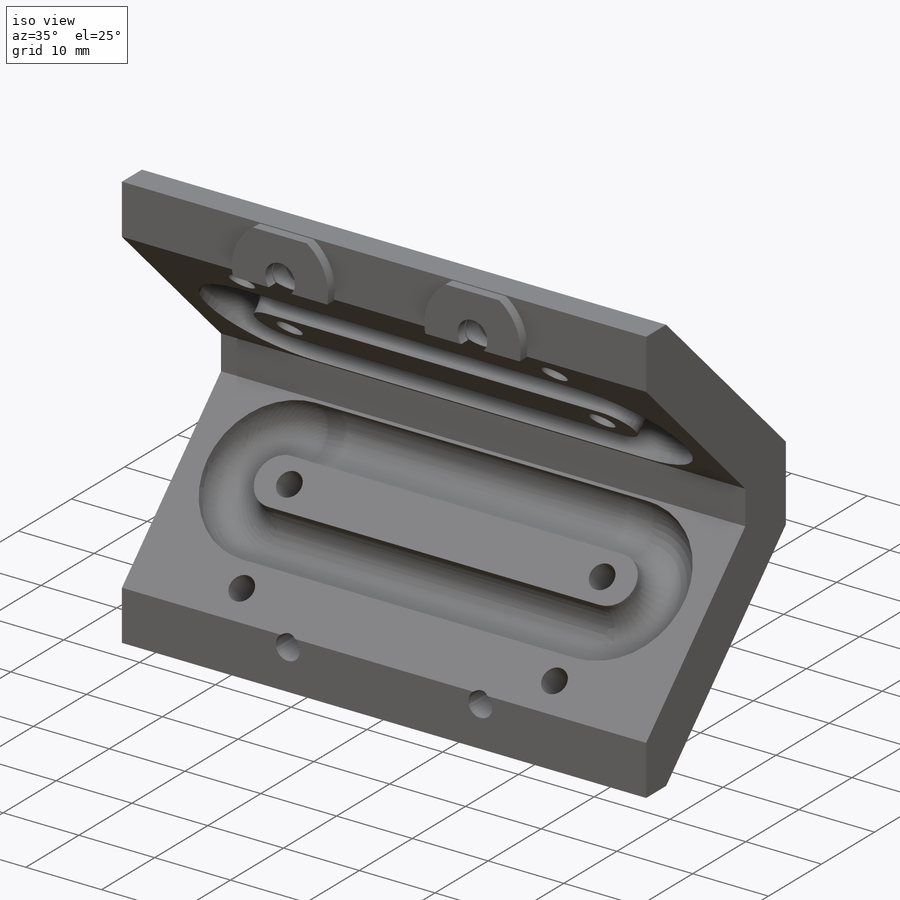
[diagram: iso view]
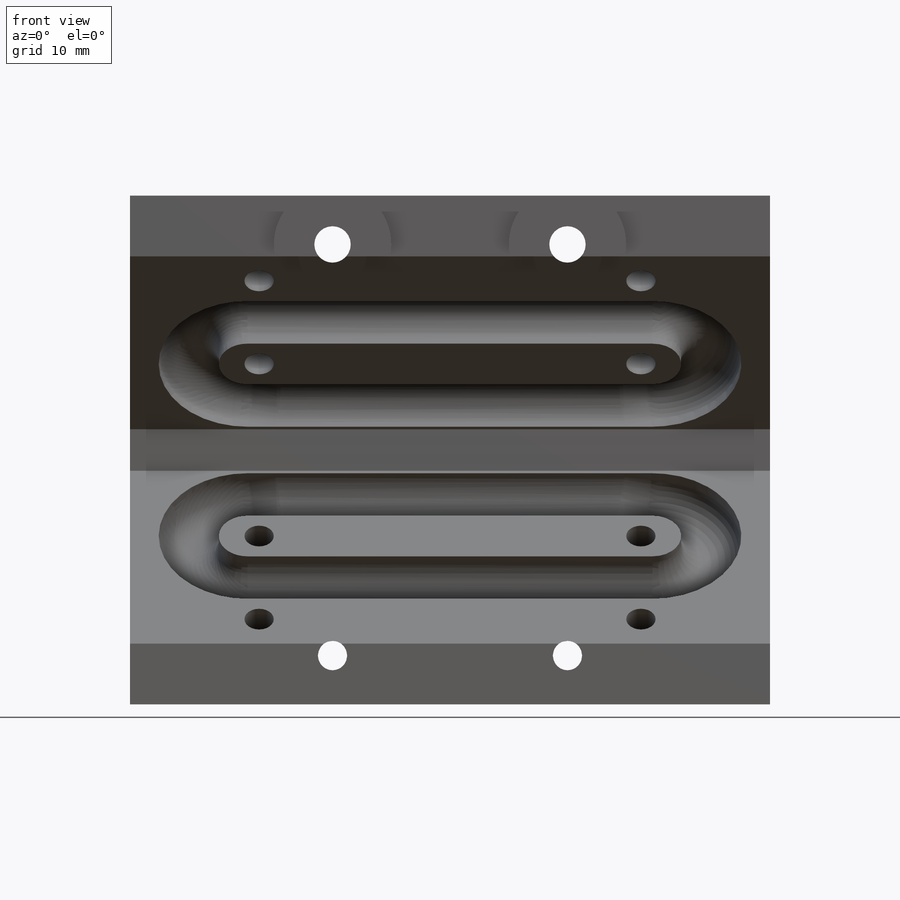
[diagram: front view]
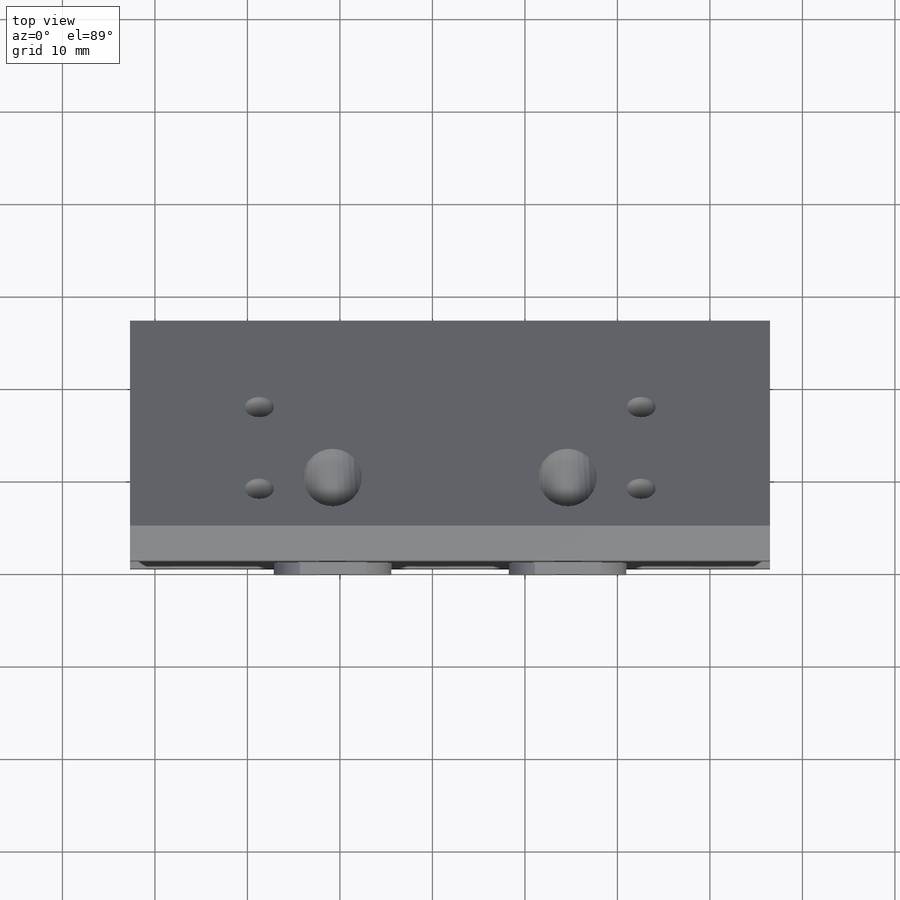
[diagram: top view]
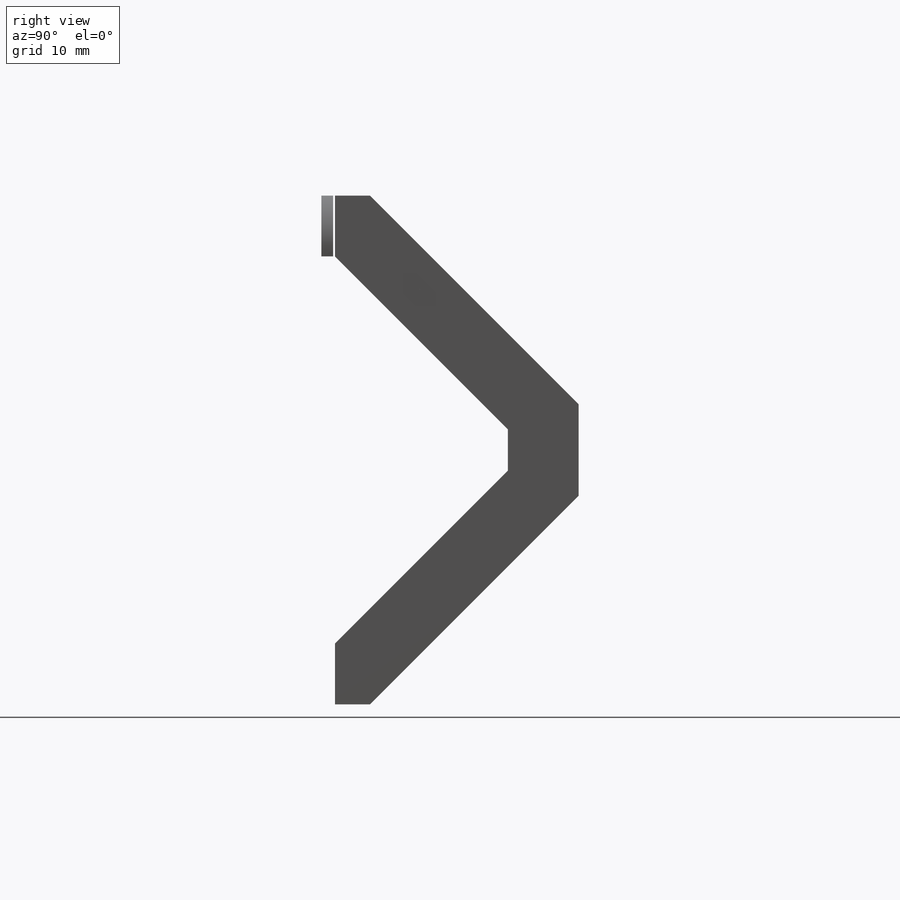
[diagram: right view]
SOLIDWORKS PART (.sldprt)
format: sldprt  version: not decoded by parser v0  size: 710,144 bytes
history: native  units: mm
features: sketch x9, cut_extrude x4, chamfer x3, plane x2, extrude x2, material x1, sweep x1, boolean_combine x1, fillet x1, mirror x1, move_body x1 (+11 scaffold rows collapsed)
feature tree (37):
  scaffold x11  (default folders/planes/origin — collapsed)
  material  "Material <not specified>"
  sketch  "Sketch1"  dims[c1.D1=0.762mm c1.D2=38.1mm c1.D3=~15.535899mm c2.D3=15.0deg c2.D4=~1.347419mm c3.D4=15.0deg]
  sketch  "Sketch4"  dims[D2=6.0mm D1=12.7mm]
  sketch  "Sketch5"  dims[D1=3.2512mm D2=0.889mm]
  sweep  "Sweep1"
  plane  "Plane1"
  sketch  "Sketch6"  dims[c1.D1=6.0mm c1.D2=25.4mm c1.D3=2.4mm c1.D4=~6.632672mm c2.D4=135.0deg c2.D5=3.175mm c2.D3=6.5402mm c3.D3=135.0deg c3.D6=3.81mm]
  extrude  "Boss-Extrude1"  Depth=12.7mm
  boolean_combine  "Combine1"
  fillet  "Fillet1"  Radius=1.5494mm
  sketch  "Sketch7"  dims[D1=0.508mm D2=1.27mm]
  cut_extrude  "Cut-Extrude1"  [1 undecoded]
  sketch  "Sketch10"  dims[D3=3.175mm D1=12.7mm D2=41.275mm]
  cut_extrude  "Cut-Extrude4"  [1 undecoded]
  mirror  "Mirror1"
  chamfer  "Chamfer1"  Distance=3.175mm Angle=45deg
  chamfer  "Chamfer2"  Distance=6.985mm Angle=45deg
  chamfer  "Chamfer3"  Distance=5.334mm Angle=45deg
  plane  "Plane2"
  move_body  "Body-Move/Copy1"
  sketch  "Sketch11"  dims[D1=3.175mm D4=3.937mm D2=25.4mm D3=44.45mm]
  cut_extrude  "Cut-Extrude5"  [1 undecoded]
  sketch  "Sketch12"  dims[D1=6.35mm]
  cut_extrude  "Cut-Extrude6"  Depth=304.8mm
  sketch  "Sketch13"  dims[D1=12.7mm]
  extrude  "Boss-Extrude2"  Depth=1.27mm
decode coverage: 16 of 23 modeling features carry decoded parameters
note: ~ marks probable driven/reference dimensions
note: 3 parameter values undecoded
summary: no parameter record found for 3 features
note: suppression state not decoded; provenance and decode notes live in map.json
